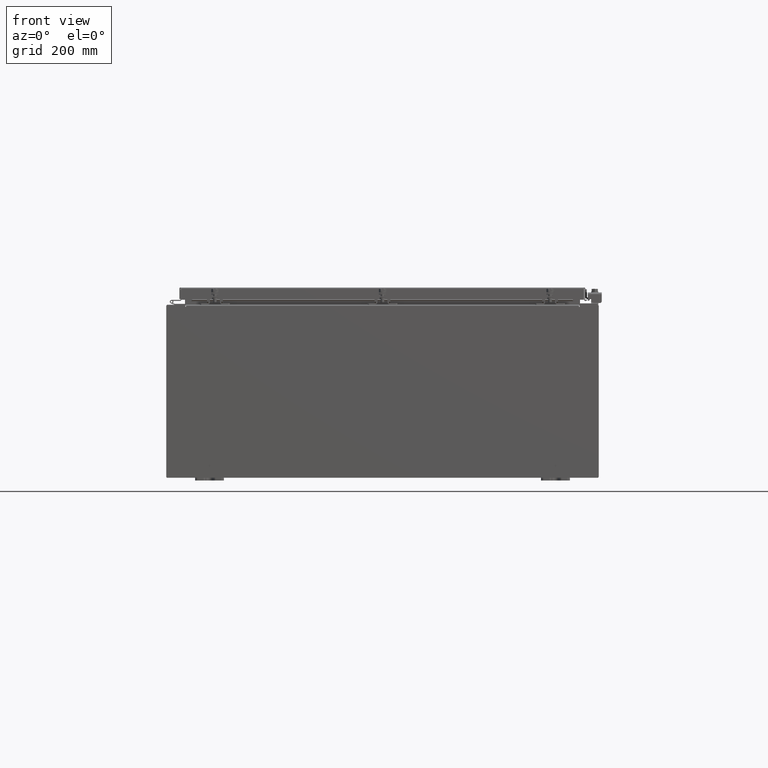
[diagram: clean part render]
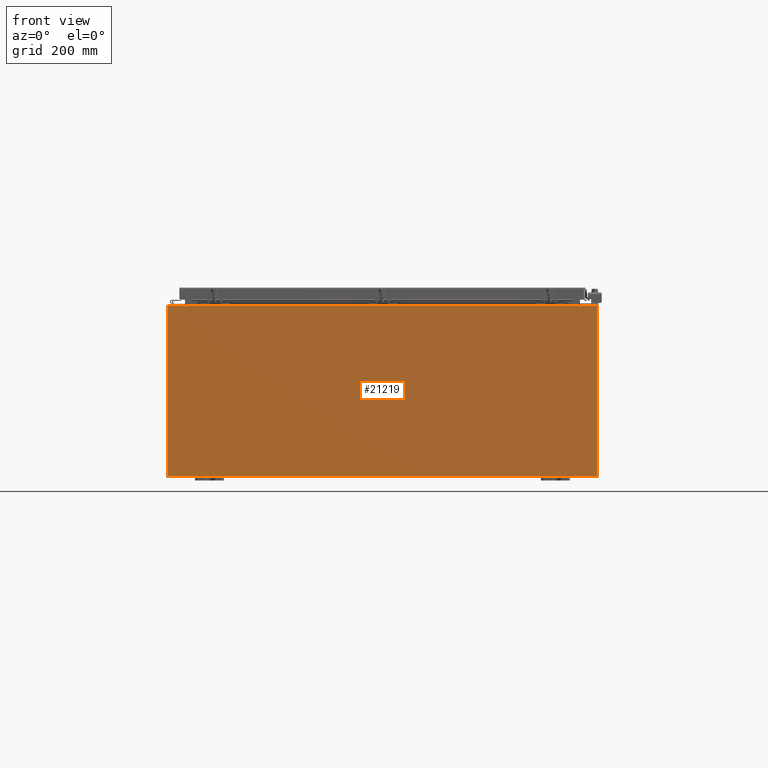
[diagram: same view with one face highlighted and labeled with its STEP entity id]
A machine part, front view. The second image highlights one B-rep face of the part: STEP entity #21219.
In plain terms, the highlighted planar face has unit normal (0, 1, -0).
Its self-contained STEP definition (entity closure, byte-faithful):
#1062 = ORIENTED_EDGE ( 'NONE', *, *, #14431, .F. ) ;
#2361 = EDGE_CURVE ( 'NONE', #34788, #21588, #27903, .T. ) ;
#3555 = LINE ( 'NONE', #18512, #38350 ) ;
#3910 = DIRECTION ( 'NONE',  ( 3.225867722578232700E-016, 1.000000000000000000, -2.013110121372520500E-016 ) ) ;
#4047 = CIRCLE ( 'NONE', #25066, 0.01867499999999949400 ) ;
#4107 = VECTOR ( 'NONE', #15563, 39.37007874015748100 ) ;
#6230 = EDGE_CURVE ( 'NONE', #14763, #35410, #18535, .T. ) ;
#6480 = CARTESIAN_POINT ( 'NONE',  ( 14.92530000000000200, 0.0000000000000000000, 5.925300000000012400 ) ) ;
#6676 = LINE ( 'NONE', #15937, #14578 ) ;
#7161 = ORIENTED_EDGE ( 'NONE', *, *, #23679, .T. ) ;
#8978 = DIRECTION ( 'NONE',  ( 9.992007221626408900E-016, -2.013110121372521300E-016, 1.000000000000000000 ) ) ;
#9064 = EDGE_CURVE ( 'NONE', #27306, #42312, #27923, .T. ) ;
#9262 = LINE ( 'NONE', #35468, #16153 ) ;
#9653 = ORIENTED_EDGE ( 'NONE', *, *, #6230, .T. ) ;
#9924 = CARTESIAN_POINT ( 'NONE',  ( -13.65587499999999600, 0.0000000000000000000, 5.874949999999985000 ) ) ;
#10410 = ORIENTED_EDGE ( 'NONE', *, *, #21732, .F. ) ;
#10489 = DIRECTION ( 'NONE',  ( 1.000000000000000000, 3.225867722578232700E-016, 9.992007221626408900E-016 ) ) ;
#12043 = LINE ( 'NONE', #32287, #4107 ) ;
#12848 = VERTEX_POINT ( 'NONE', #15115 ) ;
#13328 = DIRECTION ( 'NONE',  ( 0.0000000000000000000, 2.013110121372521000E-016, -1.000000000000000000 ) ) ;
#13439 = CARTESIAN_POINT ( 'NONE',  ( 13.63720000000000400, 0.0000000000000000000, 5.912300000000012500 ) ) ;
#13550 = EDGE_CURVE ( 'NONE', #20419, #42312, #33701, .T. ) ;
#14241 = VERTEX_POINT ( 'NONE', #17622 ) ;
#14431 = EDGE_CURVE ( 'NONE', #15497, #15564, #12043, .T. ) ;
#14578 = VECTOR ( 'NONE', #39493, 39.37007874015748100 ) ;
#14763 = VERTEX_POINT ( 'NONE', #20667 ) ;
#15115 = CARTESIAN_POINT ( 'NONE',  ( -13.67454999999999500, 0.0000000000000000000, 5.874949999999985000 ) ) ;
#15129 = AXIS2_PLACEMENT_3D ( 'NONE', #29303, #25351, #36119 ) ;
#15176 = DIRECTION ( 'NONE',  ( -9.992007221626408900E-016, 2.013110121372521300E-016, -1.000000000000000000 ) ) ;
#15497 = VERTEX_POINT ( 'NONE', #35949 ) ;
#15558 = EDGE_CURVE ( 'NONE', #12848, #21588, #6676, .T. ) ;
#15563 = DIRECTION ( 'NONE',  ( -4.440492852616269000E-014, 2.013110121372381000E-016, -1.000000000000000000 ) ) ;
#15564 = VERTEX_POINT ( 'NONE', #32681 ) ;
#15937 = CARTESIAN_POINT ( 'NONE',  ( -13.67454999999999500, 0.0000000000000000000, -1.311287036958846300E-014 ) ) ;
#16153 = VECTOR ( 'NONE', #15176, 39.37007874015748100 ) ;
#17547 = CIRCLE ( 'NONE', #17588, 0.01867499999999949400 ) ;
#17588 = AXIS2_PLACEMENT_3D ( 'NONE', #24099, #3910, #27493 ) ;
#17622 = CARTESIAN_POINT ( 'NONE',  ( -14.92529999999999800, 0.0000000000000000000, -5.925300000000014200 ) ) ;
#18141 = CARTESIAN_POINT ( 'NONE',  ( -14.92529999999999800, 0.0000000000000000000, 5.925299999999985800 ) ) ;
#18512 = CARTESIAN_POINT ( 'NONE',  ( -14.92529999999999800, 0.0000000000000000000, -5.925300000000014200 ) ) ;
#18535 = LINE ( 'NONE', #6480, #35372 ) ;
#20419 = VERTEX_POINT ( 'NONE', #35856 ) ;
#20667 = CARTESIAN_POINT ( 'NONE',  ( 14.92530000000000200, 0.0000000000000000000, 5.925300000000012400 ) ) ;
#21219 = ADVANCED_FACE ( 'NONE', ( #25100 ), #32693, .F. ) ;
#21368 = CARTESIAN_POINT ( 'NONE',  ( -14.92529999999999800, 0.0000000000000000000, 5.925299999999985800 ) ) ;
#21519 = DIRECTION ( 'NONE',  ( 1.000000000000000000, 3.225867722578232700E-016, 9.992007221626408900E-016 ) ) ;
#21588 = VERTEX_POINT ( 'NONE', #34436 ) ;
#21732 = EDGE_CURVE ( 'NONE', #27306, #43227, #9262, .T. ) ;
#22400 = LINE ( 'NONE', #27437, #42426 ) ;
#22597 = DIRECTION ( 'NONE',  ( 1.000000000000000000, 3.225867722578232700E-016, 9.992007221626408900E-016 ) ) ;
#22675 = VECTOR ( 'NONE', #38852, 39.37007874015748100 ) ;
#23180 = EDGE_LOOP ( 'NONE', ( #42656, #41744, #10410, #30209, #31227, #33363, #1062, #7161, #9653, #35776, #30652, #32062 ) ) ;
#23679 = EDGE_CURVE ( 'NONE', #15497, #14763, #22400, .T. ) ;
#24099 = CARTESIAN_POINT ( 'NONE',  ( 13.65587500000000200, 0.0000000000000000000, 5.874950000000013400 ) ) ;
#25066 = AXIS2_PLACEMENT_3D ( 'NONE', #9924, #33483, #13328 ) ;
#25100 = FACE_OUTER_BOUND ( 'NONE', #23180, .T. ) ;
#25351 = DIRECTION ( 'NONE',  ( -3.225867722578236700E-016, -1.000000000000000000, -2.013110121372518100E-016 ) ) ;
#26520 = DIRECTION ( 'NONE',  ( -9.992007221626408900E-016, 2.013110121372521300E-016, -1.000000000000000000 ) ) ;
#27306 = VERTEX_POINT ( 'NONE', #27503 ) ;
#27437 = CARTESIAN_POINT ( 'NONE',  ( -14.92529999999999800, 0.0000000000000000000, 5.925299999999985800 ) ) ;
#27493 = DIRECTION ( 'NONE',  ( 0.0000000000000000000, 2.013110121372521000E-016, -1.000000000000000000 ) ) ;
#27503 = CARTESIAN_POINT ( 'NONE',  ( -13.63719999999999600, 0.0000000000000000000, 5.912299999999985900 ) ) ;
#27903 = LINE ( 'NONE', #18141, #34751 ) ;
#27923 = LINE ( 'NONE', #42761, #36917 ) ;
#29140 = CARTESIAN_POINT ( 'NONE',  ( 13.63720000000000400, 0.0000000000000000000, 1.311287036958846300E-014 ) ) ;
#29303 = CARTESIAN_POINT ( 'NONE',  ( 0.0000000000000000000, 0.0000000000000000000, 0.0000000000000000000 ) ) ;
#30209 = ORIENTED_EDGE ( 'NONE', *, *, #9064, .T. ) ;
#30652 = ORIENTED_EDGE ( 'NONE', *, *, #33669, .T. ) ;
#31227 = ORIENTED_EDGE ( 'NONE', *, *, #13550, .F. ) ;
#31863 = CARTESIAN_POINT ( 'NONE',  ( -13.63719999999999600, 0.0000000000000000000, 5.874949999999985000 ) ) ;
#32062 = ORIENTED_EDGE ( 'NONE', *, *, #2361, .T. ) ;
#32164 = CARTESIAN_POINT ( 'NONE',  ( -14.92529999999999800, 0.0000000000000000000, 5.925299999999985800 ) ) ;
#32287 = CARTESIAN_POINT ( 'NONE',  ( 13.67454999999974600, 0.0000000000000000000, -5.802445138542894800E-013 ) ) ;
#32681 = CARTESIAN_POINT ( 'NONE',  ( 13.67455000000000200, 0.0000000000000000000, 5.874950000000013400 ) ) ;
#32693 = PLANE ( 'NONE',  #15129 ) ;
#33363 = ORIENTED_EDGE ( 'NONE', *, *, #39217, .F. ) ;
#33483 = DIRECTION ( 'NONE',  ( 3.225867722578232700E-016, 1.000000000000000000, -2.013110121372520500E-016 ) ) ;
#33669 = EDGE_CURVE ( 'NONE', #14241, #34788, #33702, .T. ) ;
#33701 = LINE ( 'NONE', #29140, #42703 ) ;
#33702 = LINE ( 'NONE', #32164, #22675 ) ;
#34436 = CARTESIAN_POINT ( 'NONE',  ( -13.67454999999999500, 0.0000000000000000000, 5.925299999999985800 ) ) ;
#34751 = VECTOR ( 'NONE', #21519, 39.37007874015748100 ) ;
#34788 = VERTEX_POINT ( 'NONE', #21368 ) ;
#35372 = VECTOR ( 'NONE', #26520, 39.37007874015748100 ) ;
#35410 = VERTEX_POINT ( 'NONE', #39144 ) ;
#35468 = CARTESIAN_POINT ( 'NONE',  ( -13.63719999999999600, 0.0000000000000000000, -1.311287036958846300E-014 ) ) ;
#35776 = ORIENTED_EDGE ( 'NONE', *, *, #43236, .T. ) ;
#35856 = CARTESIAN_POINT ( 'NONE',  ( 13.63720000000000400, 0.0000000000000000000, 5.874950000000013400 ) ) ;
#35949 = CARTESIAN_POINT ( 'NONE',  ( 13.67455000000000400, 0.0000000000000000000, 5.925300000000012400 ) ) ;
#36119 = DIRECTION ( 'NONE',  ( -9.992007221626408900E-016, 2.013110121372521300E-016, -1.000000000000000000 ) ) ;
#36917 = VECTOR ( 'NONE', #22597, 39.37007874015748100 ) ;
#38350 = VECTOR ( 'NONE', #42070, 39.37007874015748100 ) ;
#38852 = DIRECTION ( 'NONE',  ( 9.992007221626408900E-016, -2.013110121372521300E-016, 1.000000000000000000 ) ) ;
#39144 = CARTESIAN_POINT ( 'NONE',  ( 14.92530000000000200, 0.0000000000000000000, -5.925299999999988500 ) ) ;
#39217 = EDGE_CURVE ( 'NONE', #15564, #20419, #17547, .T. ) ;
#39493 = DIRECTION ( 'NONE',  ( 9.992007221626408900E-016, -2.013110121372521300E-016, 1.000000000000000000 ) ) ;
#41744 = ORIENTED_EDGE ( 'NONE', *, *, #43501, .F. ) ;
#42070 = DIRECTION ( 'NONE',  ( -1.000000000000000000, -3.225867722578232700E-016, -9.992007221626408900E-016 ) ) ;
#42312 = VERTEX_POINT ( 'NONE', #13439 ) ;
#42426 = VECTOR ( 'NONE', #10489, 39.37007874015748100 ) ;
#42656 = ORIENTED_EDGE ( 'NONE', *, *, #15558, .F. ) ;
#42703 = VECTOR ( 'NONE', #8978, 39.37007874015748100 ) ;
#42761 = CARTESIAN_POINT ( 'NONE',  ( -13.63719999999999800, 0.0000000000000000000, 5.912299999999985900 ) ) ;
#43227 = VERTEX_POINT ( 'NONE', #31863 ) ;
#43236 = EDGE_CURVE ( 'NONE', #35410, #14241, #3555, .T. ) ;
#43501 = EDGE_CURVE ( 'NONE', #43227, #12848, #4047, .T. ) ;